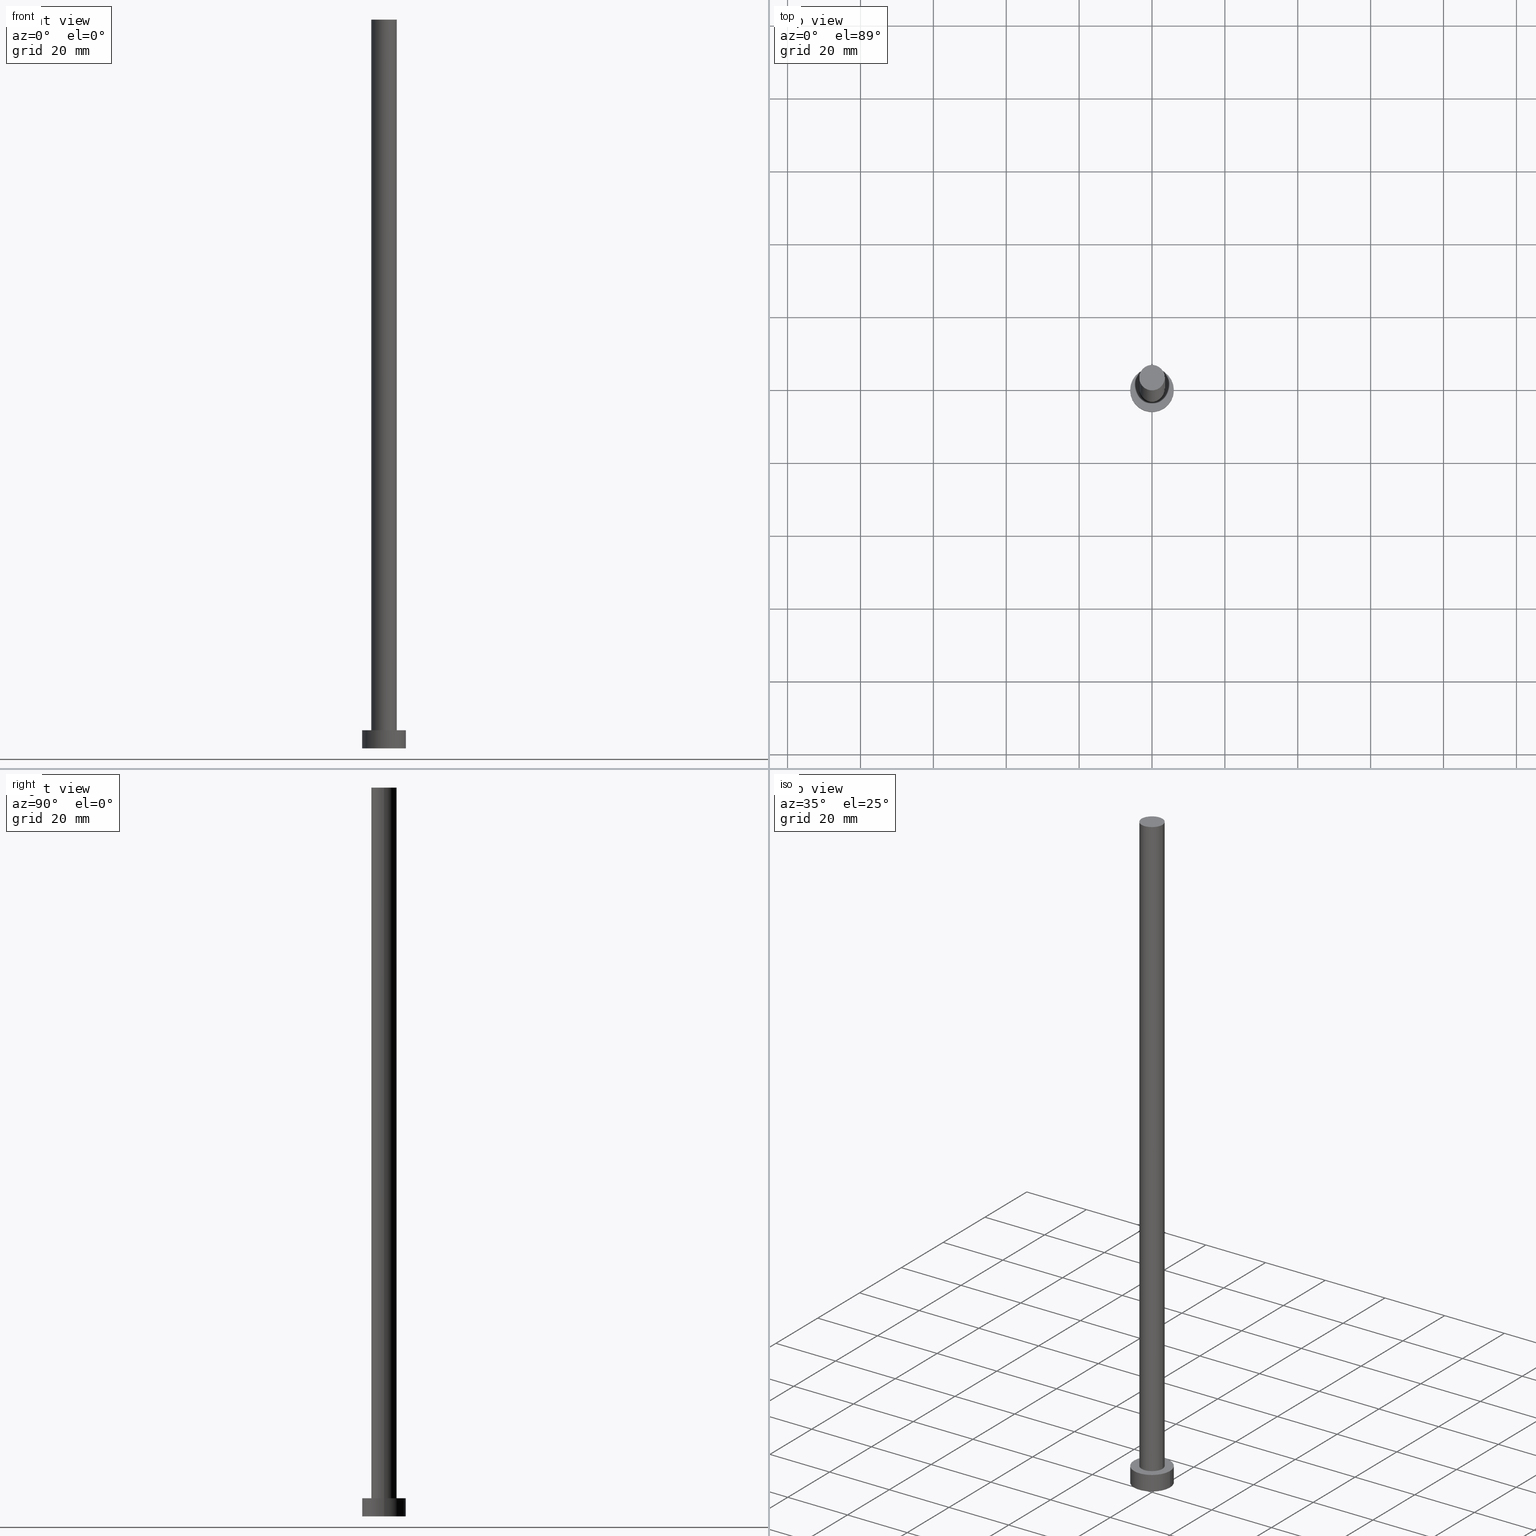
[diagram: canonical four-view strip — front | top / right | iso, engineering-drawing reading convention]
A machine part, canonical four-view strip (front | top / right | iso — engineering-drawing reading convention). The complete STEP part file that produces these views, byte-faithful:
ISO-10303-21;
HEADER;
FILE_DESCRIPTION (( 'STEP AP203' ),
    '1' );
FILE_NAME ('a986.STEP',
    '2023-02-13T14:51:32',
    ( '' ),
    ( '' ),
    'SwSTEP 2.0',
    'SolidWorks 2019',
    '' );
FILE_SCHEMA (( 'CONFIG_CONTROL_DESIGN' ));
ENDSEC;

DATA;
#1 = AXIS2_PLACEMENT_3D ( 'NONE', #213, #15, #209 ) ;
#2 = CC_DESIGN_APPROVAL ( #107, ( #94 ) ) ;
#3 = EDGE_LOOP ( 'NONE', ( #82, #150 ) ) ;
#4 = LINE ( 'NONE', #201, #145 ) ;
#5 = CYLINDRICAL_SURFACE ( 'NONE', #204, 6.000000000000000888 ) ;
#6 = VERTEX_POINT ( 'NONE', #79 ) ;
#7 = ORIENTED_EDGE ( 'NONE', *, *, #74, .F. ) ;
#8 = DIRECTION ( 'NONE',  ( 0.000000000000000000, 0.000000000000000000, 1.000000000000000000 ) ) ;
#9 = DIRECTION ( 'NONE',  ( -0.000000000000000000, -0.000000000000000000, -1.000000000000000000 ) ) ;
#10 = APPROVAL_STATUS ( 'not_yet_approved' ) ;
#11 = CARTESIAN_POINT ( 'NONE',  ( 0.000000000000000000, 0.000000000000000000, 200.0000000000000000 ) ) ;
#12 = ADVANCED_FACE ( 'NONE', ( #166 ), #62, .T. ) ;
#13 = AXIS2_PLACEMENT_3D ( 'NONE', #175, #193, #136 ) ;
#14 = DIRECTION ( 'NONE',  ( 0.000000000000000000, 0.000000000000000000, 1.000000000000000000 ) ) ;
#15 = DIRECTION ( 'NONE',  ( -0.000000000000000000, -0.000000000000000000, -1.000000000000000000 ) ) ;
#16 = CALENDAR_DATE ( 2023, 13, 2 ) ;
#17 = COORDINATED_UNIVERSAL_TIME_OFFSET ( 1, 0, .AHEAD. ) ;
#18 = DATE_TIME_ROLE ( 'creation_date' ) ;
#19 = ORIENTED_EDGE ( 'NONE', *, *, #230, .F. ) ;
#20 = VERTEX_POINT ( 'NONE', #126 ) ;
#21 = EDGE_LOOP ( 'NONE', ( #97, #205, #182, #122 ) ) ;
#22 = EDGE_LOOP ( 'NONE', ( #64, #102 ) ) ;
#23 = APPROVAL_DATE_TIME ( #199, #70 ) ;
#24 = CC_DESIGN_APPROVAL ( #70, ( #238 ) ) ;
#25 = DIRECTION ( 'NONE',  ( -0.000000000000000000, -0.000000000000000000, -1.000000000000000000 ) ) ;
#26 = ORIENTED_EDGE ( 'NONE', *, *, #111, .F. ) ;
#27 = CARTESIAN_POINT ( 'NONE',  ( -6.000000000000000888, 0.000000000000000000, 0.000000000000000000 ) ) ;
#28 = PRODUCT_DEFINITION_SHAPE ( 'NONE', 'NONE',  #148 ) ;
#29 = CC_DESIGN_PERSON_AND_ORGANIZATION_ASSIGNMENT ( #191, #246, ( #148 ) ) ;
#30 = CYLINDRICAL_SURFACE ( 'NONE', #85, 3.500000000000000000 ) ;
#31 = CARTESIAN_POINT ( 'NONE',  ( -3.500000000000000000, 0.000000000000000000, 200.0000000000000000 ) ) ;
#32 = PERSON_AND_ORGANIZATION ( #187, #60 ) ;
#33 = DIRECTION ( 'NONE',  ( 1.000000000000000000, 0.000000000000000000, 0.000000000000000000 ) ) ;
#34 = PERSON_AND_ORGANIZATION_ROLE ( 'classification_officer' ) ;
#35 = DIRECTION ( 'NONE',  ( -0.000000000000000000, -0.000000000000000000, -1.000000000000000000 ) ) ;
#36 = CIRCLE ( 'NONE', #250, 6.000000000000000888 ) ;
#37 = CARTESIAN_POINT ( 'NONE',  ( 0.000000000000000000, 0.000000000000000000, 0.000000000000000000 ) ) ;
#38 = CC_DESIGN_APPROVAL ( #117, ( #148 ) ) ;
#39 = AXIS2_PLACEMENT_3D ( 'NONE', #130, #244, #109 ) ;
#40 = ORIENTED_EDGE ( 'NONE', *, *, #221, .T. ) ;
#41 = APPROVAL_STATUS ( 'not_yet_approved' ) ;
#42 = ORIENTED_EDGE ( 'NONE', *, *, #251, .F. ) ;
#43 = COORDINATED_UNIVERSAL_TIME_OFFSET ( 1, 0, .AHEAD. ) ;
#44 = APPROVAL_PERSON_ORGANIZATION ( #57, #117, #194 ) ;
#45 = CARTESIAN_POINT ( 'NONE',  ( 0.000000000000000000, 0.000000000000000000, 5.000000000000000000 ) ) ;
#46 = PLANE ( 'NONE',  #177 ) ;
#47 = CARTESIAN_POINT ( 'NONE',  ( 3.500000000000000000, 4.286263797015736595E-16, 200.0000000000000000 ) ) ;
#48 = PERSON_AND_ORGANIZATION_ROLE ( 'creator' ) ;
#49 = EDGE_CURVE ( 'NONE', #233, #147, #172, .T. ) ;
#50 = PERSON_AND_ORGANIZATION ( #187, #60 ) ;
#51 = PERSON_AND_ORGANIZATION_ROLE ( 'design_supplier' ) ;
#52 = LOCAL_TIME ( 15, 51, 32.00000000000000000, #212 ) ;
#53 = MECHANICAL_CONTEXT ( 'NONE', #58, 'mechanical' ) ;
#54 = FACE_OUTER_BOUND ( 'NONE', #252, .T. ) ;
#55 = CALENDAR_DATE ( 2023, 13, 2 ) ;
#56 = EDGE_CURVE ( 'NONE', #20, #180, #185, .T. ) ;
#57 = PERSON_AND_ORGANIZATION ( #187, #60 ) ;
#58 = APPLICATION_CONTEXT ( 'configuration controlled 3d designs of mechanical parts and assemblies' ) ;
#59 = ORIENTED_EDGE ( 'NONE', *, *, #251, .T. ) ;
#60 = ORGANIZATION ( 'NEUR�EN�', 'NEUR�EN�', '' ) ;
#61 = EDGE_CURVE ( 'NONE', #65, #163, #96, .T. ) ;
#62 = PLANE ( 'NONE',  #105 ) ;
#63 = LINE ( 'NONE', #220, #234 ) ;
#64 = ORIENTED_EDGE ( 'NONE', *, *, #49, .T. ) ;
#65 = VERTEX_POINT ( 'NONE', #113 ) ;
#66 = DIRECTION ( 'NONE',  ( -1.000000000000000000, 0.000000000000000000, 0.000000000000000000 ) ) ;
#67 =( LENGTH_UNIT ( ) NAMED_UNIT ( * ) SI_UNIT ( .MILLI., .METRE. ) );
#68 = DIRECTION ( 'NONE',  ( 1.000000000000000000, 0.000000000000000000, 0.000000000000000000 ) ) ;
#69 = CYLINDRICAL_SURFACE ( 'NONE', #1, 3.500000000000000000 ) ;
#70 = APPROVAL ( #41, 'NEUR�EN�' ) ;
#71 = DIRECTION ( 'NONE',  ( -1.000000000000000000, 0.000000000000000000, 0.000000000000000000 ) ) ;
#72 = CARTESIAN_POINT ( 'NONE',  ( 0.000000000000000000, 0.000000000000000000, 200.0000000000000000 ) ) ;
#73 = DIRECTION ( 'NONE',  ( 0.000000000000000000, 0.000000000000000000, 1.000000000000000000 ) ) ;
#74 = EDGE_CURVE ( 'NONE', #222, #6, #36, .T. ) ;
#75 = CARTESIAN_POINT ( 'NONE',  ( -3.500000000000000000, 0.000000000000000000, 200.0000000000000000 ) ) ;
#76 = DATE_AND_TIME ( #249, #129 ) ;
#77 = ORIENTED_EDGE ( 'NONE', *, *, #56, .T. ) ;
#78 = MANIFOLD_SOLID_BREP ( 'P�idat vysunut�m3', #124 ) ;
#79 = CARTESIAN_POINT ( 'NONE',  ( -6.000000000000000888, 0.000000000000000000, 5.000000000000000000 ) ) ;
#80 = DATE_AND_TIME ( #184, #202 ) ;
#81 = EDGE_CURVE ( 'NONE', #147, #163, #4, .T. ) ;
#82 = ORIENTED_EDGE ( 'NONE', *, *, #61, .F. ) ;
#83 = ORIENTED_EDGE ( 'NONE', *, *, #49, .F. ) ;
#84 = CC_DESIGN_PERSON_AND_ORGANIZATION_ASSIGNMENT ( #32, #51, ( #94 ) ) ;
#85 = AXIS2_PLACEMENT_3D ( 'NONE', #72, #35, #71 ) ;
#86 = DIRECTION ( 'NONE',  ( 1.000000000000000000, 0.000000000000000000, -0.000000000000000000 ) ) ;
#87 = CARTESIAN_POINT ( 'NONE',  ( 0.000000000000000000, 0.000000000000000000, 5.000000000000000000 ) ) ;
#88 = CARTESIAN_POINT ( 'NONE',  ( 0.000000000000000000, 0.000000000000000000, 200.0000000000000000 ) ) ;
#89 = DIRECTION ( 'NONE',  ( 1.000000000000000000, 0.000000000000000000, 0.000000000000000000 ) ) ;
#90 = DIRECTION ( 'NONE',  ( 1.000000000000000000, 0.000000000000000000, -0.000000000000000000 ) ) ;
#91 = CC_DESIGN_DATE_AND_TIME_ASSIGNMENT ( #80, #167, ( #238 ) ) ;
#92 = PLANE ( 'NONE',  #232 ) ;
#93 = VECTOR ( 'NONE', #224, 1000.000000000000000 ) ;
#94 = PRODUCT_DEFINITION_FORMATION_WITH_SPECIFIED_SOURCE ( 'LIBOVOLN�', '', #181, .NOT_KNOWN. ) ;
#95 = CC_DESIGN_PERSON_AND_ORGANIZATION_ASSIGNMENT ( #211, #34, ( #238 ) ) ;
#96 = CIRCLE ( 'NONE', #13, 3.500000000000000000 ) ;
#97 = ORIENTED_EDGE ( 'NONE', *, *, #221, .F. ) ;
#98 = ADVANCED_FACE ( 'NONE', ( #170 ), #236, .T. ) ;
#99 = EDGE_LOOP ( 'NONE', ( #19, #200, #183, #42 ) ) ;
#100 = ORIENTED_EDGE ( 'NONE', *, *, #61, .T. ) ;
#101 = CIRCLE ( 'NONE', #108, 6.000000000000000888 ) ;
#102 = ORIENTED_EDGE ( 'NONE', *, *, #230, .T. ) ;
#103 = DIRECTION ( 'NONE',  ( -0.000000000000000000, -0.000000000000000000, -1.000000000000000000 ) ) ;
#104 = DIRECTION ( 'NONE',  ( -1.000000000000000000, 0.000000000000000000, 0.000000000000000000 ) ) ;
#105 = AXIS2_PLACEMENT_3D ( 'NONE', #144, #203, #186 ) ;
#106 = CARTESIAN_POINT ( 'NONE',  ( 6.000000000000000888, 7.347880794884120722E-16, 5.000000000000000000 ) ) ;
#107 = APPROVAL ( #10, 'NEUR�EN�' ) ;
#108 = AXIS2_PLACEMENT_3D ( 'NONE', #37, #114, #192 ) ;
#109 = DIRECTION ( 'NONE',  ( 1.000000000000000000, 0.000000000000000000, 0.000000000000000000 ) ) ;
#110 = CARTESIAN_POINT ( 'NONE',  ( 6.000000000000000888, 7.347880794884120722E-16, 5.000000000000000000 ) ) ;
#111 = EDGE_CURVE ( 'NONE', #6, #180, #63, .T. ) ;
#112 = AXIS2_PLACEMENT_3D ( 'NONE', #11, #115, #89 ) ;
#113 = CARTESIAN_POINT ( 'NONE',  ( -3.500000000000000000, 0.000000000000000000, 5.000000000000000000 ) ) ;
#114 = DIRECTION ( 'NONE',  ( 0.000000000000000000, 0.000000000000000000, 1.000000000000000000 ) ) ;
#115 = DIRECTION ( 'NONE',  ( 0.000000000000000000, 0.000000000000000000, 1.000000000000000000 ) ) ;
#116 =( GEOMETRIC_REPRESENTATION_CONTEXT ( 3 ) GLOBAL_UNCERTAINTY_ASSIGNED_CONTEXT ( ( #127 ) ) GLOBAL_UNIT_ASSIGNED_CONTEXT ( ( #67, #155, #140 ) ) REPRESENTATION_CONTEXT ( 'NONE', 'WORKASPACE' ) );
#117 = APPROVAL ( #165, 'NEUR�EN�' ) ;
#118 = APPROVAL_PERSON_ORGANIZATION ( #218, #70, #149 ) ;
#119 = APPLICATION_PROTOCOL_DEFINITION ( 'international standard', 'config_control_design', 1994, #58 ) ;
#120 = ADVANCED_FACE ( 'NONE', ( #237 ), #5, .T. ) ;
#121 = ADVANCED_BREP_SHAPE_REPRESENTATION ( 'a986', ( #78, #178 ), #116 ) ;
#122 = ORIENTED_EDGE ( 'NONE', *, *, #245, .T. ) ;
#123 = DIRECTION ( 'NONE',  ( -0.000000000000000000, -0.000000000000000000, -1.000000000000000000 ) ) ;
#124 = CLOSED_SHELL ( 'NONE', ( #214, #98, #120, #143, #225, #241, #12 ) ) ;
#125 = ORIENTED_EDGE ( 'NONE', *, *, #81, .F. ) ;
#126 = CARTESIAN_POINT ( 'NONE',  ( 6.000000000000000888, 7.347880794884120722E-16, 0.000000000000000000 ) ) ;
#127 = UNCERTAINTY_MEASURE_WITH_UNIT (LENGTH_MEASURE( 1.000000000000000082E-05 ), #67, 'distance_accuracy_value', 'NONE');
#128 = CARTESIAN_POINT ( 'NONE',  ( 3.500000000000000000, 4.286263797015736595E-16, 5.000000000000000000 ) ) ;
#129 = LOCAL_TIME ( 15, 51, 32.00000000000000000, #17 ) ;
#130 = CARTESIAN_POINT ( 'NONE',  ( 0.000000000000000000, 0.000000000000000000, 5.000000000000000000 ) ) ;
#131 = FACE_OUTER_BOUND ( 'NONE', #99, .T. ) ;
#132 = PERSON_AND_ORGANIZATION_ROLE ( 'design_owner' ) ;
#133 = CIRCLE ( 'NONE', #142, 3.500000000000000000 ) ;
#134 = PRODUCT_RELATED_PRODUCT_CATEGORY ( 'detail', '', ( #181 ) ) ;
#135 = SECURITY_CLASSIFICATION_LEVEL ( 'unclassified' ) ;
#136 = DIRECTION ( 'NONE',  ( 1.000000000000000000, 0.000000000000000000, 0.000000000000000000 ) ) ;
#137 = APPLICATION_CONTEXT ( 'configuration controlled 3d designs of mechanical parts and assemblies' ) ;
#138 = APPLICATION_PROTOCOL_DEFINITION ( 'international standard', 'config_control_design', 1994, #137 ) ;
#139 = CARTESIAN_POINT ( 'NONE',  ( 0.000000000000000000, 0.000000000000000000, 0.000000000000000000 ) ) ;
#140 =( NAMED_UNIT ( * ) SI_UNIT ( $, .STERADIAN. ) SOLID_ANGLE_UNIT ( ) );
#141 = AXIS2_PLACEMENT_3D ( 'NONE', #139, #210, #33 ) ;
#142 = AXIS2_PLACEMENT_3D ( 'NONE', #87, #240, #68 ) ;
#143 = ADVANCED_FACE ( 'NONE', ( #151, #223 ), #46, .T. ) ;
#144 = CARTESIAN_POINT ( 'NONE',  ( 0.000000000000000000, 0.000000000000000000, 200.0000000000000000 ) ) ;
#145 = VECTOR ( 'NONE', #25, 1000.000000000000000 ) ;
#146 = SHAPE_DEFINITION_REPRESENTATION ( #28, #121 ) ;
#147 = VERTEX_POINT ( 'NONE', #47 ) ;
#148 = PRODUCT_DEFINITION ( 'NEZN�M�', '', #94, #169 ) ;
#149 = APPROVAL_ROLE ( '' ) ;
#150 = ORIENTED_EDGE ( 'NONE', *, *, #197, .F. ) ;
#151 = FACE_BOUND ( 'NONE', #3, .T. ) ;
#152 = ORIENTED_EDGE ( 'NONE', *, *, #208, .T. ) ;
#153 = CARTESIAN_POINT ( 'NONE',  ( 0.000000000000000000, 0.000000000000000000, 5.000000000000000000 ) ) ;
#154 = CC_DESIGN_DATE_AND_TIME_ASSIGNMENT ( #188, #18, ( #148 ) ) ;
#155 =( NAMED_UNIT ( * ) PLANE_ANGLE_UNIT ( ) SI_UNIT ( $, .RADIAN. ) );
#156 = LINE ( 'NONE', #31, #253 ) ;
#157 = PERSON_AND_ORGANIZATION ( #187, #60 ) ;
#158 = DIRECTION ( 'NONE',  ( 1.000000000000000000, 0.000000000000000000, 0.000000000000000000 ) ) ;
#159 = CIRCLE ( 'NONE', #217, 3.500000000000000000 ) ;
#160 = DIRECTION ( 'NONE',  ( 0.000000000000000000, 0.000000000000000000, 1.000000000000000000 ) ) ;
#161 = PERSON_AND_ORGANIZATION ( #187, #60 ) ;
#162 = DIRECTION ( 'NONE',  ( 1.000000000000000000, 0.000000000000000000, 0.000000000000000000 ) ) ;
#163 = VERTEX_POINT ( 'NONE', #128 ) ;
#164 = CC_DESIGN_SECURITY_CLASSIFICATION ( #238, ( #94 ) ) ;
#165 = APPROVAL_STATUS ( 'not_yet_approved' ) ;
#166 = FACE_OUTER_BOUND ( 'NONE', #22, .T. ) ;
#167 = DATE_TIME_ROLE ( 'classification_date' ) ;
#168 = CC_DESIGN_PERSON_AND_ORGANIZATION_ASSIGNMENT ( #50, #132, ( #181 ) ) ;
#169 = DESIGN_CONTEXT ( 'detailed design', #137, 'design' ) ;
#170 = FACE_OUTER_BOUND ( 'NONE', #231, .T. ) ;
#171 = EDGE_LOOP ( 'NONE', ( #235, #229 ) ) ;
#172 = CIRCLE ( 'NONE', #112, 3.500000000000000000 ) ;
#173 = FACE_OUTER_BOUND ( 'NONE', #171, .T. ) ;
#174 = CARTESIAN_POINT ( 'NONE',  ( 0.000000000000000000, 0.000000000000000000, 0.000000000000000000 ) ) ;
#175 = CARTESIAN_POINT ( 'NONE',  ( 0.000000000000000000, 0.000000000000000000, 5.000000000000000000 ) ) ;
#176 = COORDINATED_UNIVERSAL_TIME_OFFSET ( 1, 0, .AHEAD. ) ;
#177 = AXIS2_PLACEMENT_3D ( 'NONE', #153, #8, #86 ) ;
#178 = AXIS2_PLACEMENT_3D ( 'NONE', #174, #14, #158 ) ;
#179 = CC_DESIGN_PERSON_AND_ORGANIZATION_ASSIGNMENT ( #157, #48, ( #94 ) ) ;
#180 = VERTEX_POINT ( 'NONE', #27 ) ;
#181 = PRODUCT ( 'a986', 'a986', '', ( #53 ) ) ;
#182 = ORIENTED_EDGE ( 'NONE', *, *, #111, .T. ) ;
#183 = ORIENTED_EDGE ( 'NONE', *, *, #197, .T. ) ;
#184 = CALENDAR_DATE ( 2023, 13, 2 ) ;
#185 = CIRCLE ( 'NONE', #141, 6.000000000000000888 ) ;
#186 = DIRECTION ( 'NONE',  ( 1.000000000000000000, 0.000000000000000000, -0.000000000000000000 ) ) ;
#187 = PERSON ( 'NEUR�EN�', 'NEUR�EN�', 'NEUR�EN�', ('NEUR�EN�'), ('NEUR�EN�'), ('NEUR�EN�') ) ;
#188 = DATE_AND_TIME ( #55, #52 ) ;
#189 = APPROVAL_PERSON_ORGANIZATION ( #161, #107, #215 ) ;
#190 = CARTESIAN_POINT ( 'NONE',  ( 0.000000000000000000, 0.000000000000000000, 0.000000000000000000 ) ) ;
#191 = PERSON_AND_ORGANIZATION ( #187, #60 ) ;
#192 = DIRECTION ( 'NONE',  ( 1.000000000000000000, 0.000000000000000000, 0.000000000000000000 ) ) ;
#193 = DIRECTION ( 'NONE',  ( 0.000000000000000000, 0.000000000000000000, 1.000000000000000000 ) ) ;
#194 = APPROVAL_ROLE ( '' ) ;
#195 = APPROVAL_DATE_TIME ( #76, #117 ) ;
#196 = AXIS2_PLACEMENT_3D ( 'NONE', #206, #123, #104 ) ;
#197 = EDGE_CURVE ( 'NONE', #163, #65, #133, .T. ) ;
#198 = EDGE_LOOP ( 'NONE', ( #152, #255 ) ) ;
#199 = DATE_AND_TIME ( #219, #207 ) ;
#200 = ORIENTED_EDGE ( 'NONE', *, *, #81, .T. ) ;
#201 = CARTESIAN_POINT ( 'NONE',  ( 3.500000000000000000, 4.286263797015736595E-16, 200.0000000000000000 ) ) ;
#202 = LOCAL_TIME ( 15, 51, 32.00000000000000000, #216 ) ;
#203 = DIRECTION ( 'NONE',  ( 0.000000000000000000, 0.000000000000000000, 1.000000000000000000 ) ) ;
#204 = AXIS2_PLACEMENT_3D ( 'NONE', #45, #103, #66 ) ;
#205 = ORIENTED_EDGE ( 'NONE', *, *, #208, .F. ) ;
#206 = CARTESIAN_POINT ( 'NONE',  ( 0.000000000000000000, 0.000000000000000000, 5.000000000000000000 ) ) ;
#207 = LOCAL_TIME ( 15, 51, 32.00000000000000000, #43 ) ;
#208 = EDGE_CURVE ( 'NONE', #6, #222, #254, .T. ) ;
#209 = DIRECTION ( 'NONE',  ( -1.000000000000000000, 0.000000000000000000, 0.000000000000000000 ) ) ;
#210 = DIRECTION ( 'NONE',  ( 0.000000000000000000, 0.000000000000000000, 1.000000000000000000 ) ) ;
#211 = PERSON_AND_ORGANIZATION ( #187, #60 ) ;
#212 = COORDINATED_UNIVERSAL_TIME_OFFSET ( 1, 0, .AHEAD. ) ;
#213 = CARTESIAN_POINT ( 'NONE',  ( 0.000000000000000000, 0.000000000000000000, 200.0000000000000000 ) ) ;
#214 = ADVANCED_FACE ( 'NONE', ( #131 ), #30, .T. ) ;
#215 = APPROVAL_ROLE ( '' ) ;
#216 = COORDINATED_UNIVERSAL_TIME_OFFSET ( 1, 0, .AHEAD. ) ;
#217 = AXIS2_PLACEMENT_3D ( 'NONE', #88, #242, #227 ) ;
#218 = PERSON_AND_ORGANIZATION ( #187, #60 ) ;
#219 = CALENDAR_DATE ( 2023, 13, 2 ) ;
#220 = CARTESIAN_POINT ( 'NONE',  ( -6.000000000000000888, 0.000000000000000000, 5.000000000000000000 ) ) ;
#221 = EDGE_CURVE ( 'NONE', #222, #20, #226, .T. ) ;
#222 = VERTEX_POINT ( 'NONE', #106 ) ;
#223 = FACE_OUTER_BOUND ( 'NONE', #198, .T. ) ;
#224 = DIRECTION ( 'NONE',  ( -0.000000000000000000, -0.000000000000000000, -1.000000000000000000 ) ) ;
#225 = ADVANCED_FACE ( 'NONE', ( #173 ), #92, .F. ) ;
#226 = LINE ( 'NONE', #110, #93 ) ;
#227 = DIRECTION ( 'NONE',  ( 1.000000000000000000, 0.000000000000000000, 0.000000000000000000 ) ) ;
#228 = DATE_AND_TIME ( #16, #243 ) ;
#229 = ORIENTED_EDGE ( 'NONE', *, *, #56, .F. ) ;
#230 = EDGE_CURVE ( 'NONE', #147, #233, #159, .T. ) ;
#231 = EDGE_LOOP ( 'NONE', ( #7, #40, #77, #26 ) ) ;
#232 = AXIS2_PLACEMENT_3D ( 'NONE', #190, #160, #90 ) ;
#233 = VERTEX_POINT ( 'NONE', #75 ) ;
#234 = VECTOR ( 'NONE', #239, 1000.000000000000000 ) ;
#235 = ORIENTED_EDGE ( 'NONE', *, *, #245, .F. ) ;
#236 = CYLINDRICAL_SURFACE ( 'NONE', #196, 6.000000000000000888 ) ;
#237 = FACE_OUTER_BOUND ( 'NONE', #21, .T. ) ;
#238 = SECURITY_CLASSIFICATION ( '', '', #135 ) ;
#239 = DIRECTION ( 'NONE',  ( -0.000000000000000000, -0.000000000000000000, -1.000000000000000000 ) ) ;
#240 = DIRECTION ( 'NONE',  ( 0.000000000000000000, 0.000000000000000000, 1.000000000000000000 ) ) ;
#241 = ADVANCED_FACE ( 'NONE', ( #54 ), #69, .T. ) ;
#242 = DIRECTION ( 'NONE',  ( 0.000000000000000000, 0.000000000000000000, 1.000000000000000000 ) ) ;
#243 = LOCAL_TIME ( 15, 51, 32.00000000000000000, #176 ) ;
#244 = DIRECTION ( 'NONE',  ( 0.000000000000000000, 0.000000000000000000, 1.000000000000000000 ) ) ;
#245 = EDGE_CURVE ( 'NONE', #180, #20, #101, .T. ) ;
#246 = PERSON_AND_ORGANIZATION_ROLE ( 'creator' ) ;
#247 = CARTESIAN_POINT ( 'NONE',  ( 0.000000000000000000, 0.000000000000000000, 5.000000000000000000 ) ) ;
#248 = APPROVAL_DATE_TIME ( #228, #107 ) ;
#249 = CALENDAR_DATE ( 2023, 13, 2 ) ;
#250 = AXIS2_PLACEMENT_3D ( 'NONE', #247, #73, #162 ) ;
#251 = EDGE_CURVE ( 'NONE', #233, #65, #156, .T. ) ;
#252 = EDGE_LOOP ( 'NONE', ( #125, #83, #59, #100 ) ) ;
#253 = VECTOR ( 'NONE', #9, 1000.000000000000000 ) ;
#254 = CIRCLE ( 'NONE', #39, 6.000000000000000888 ) ;
#255 = ORIENTED_EDGE ( 'NONE', *, *, #74, .T. ) ;
ENDSEC;
END-ISO-10303-21;
